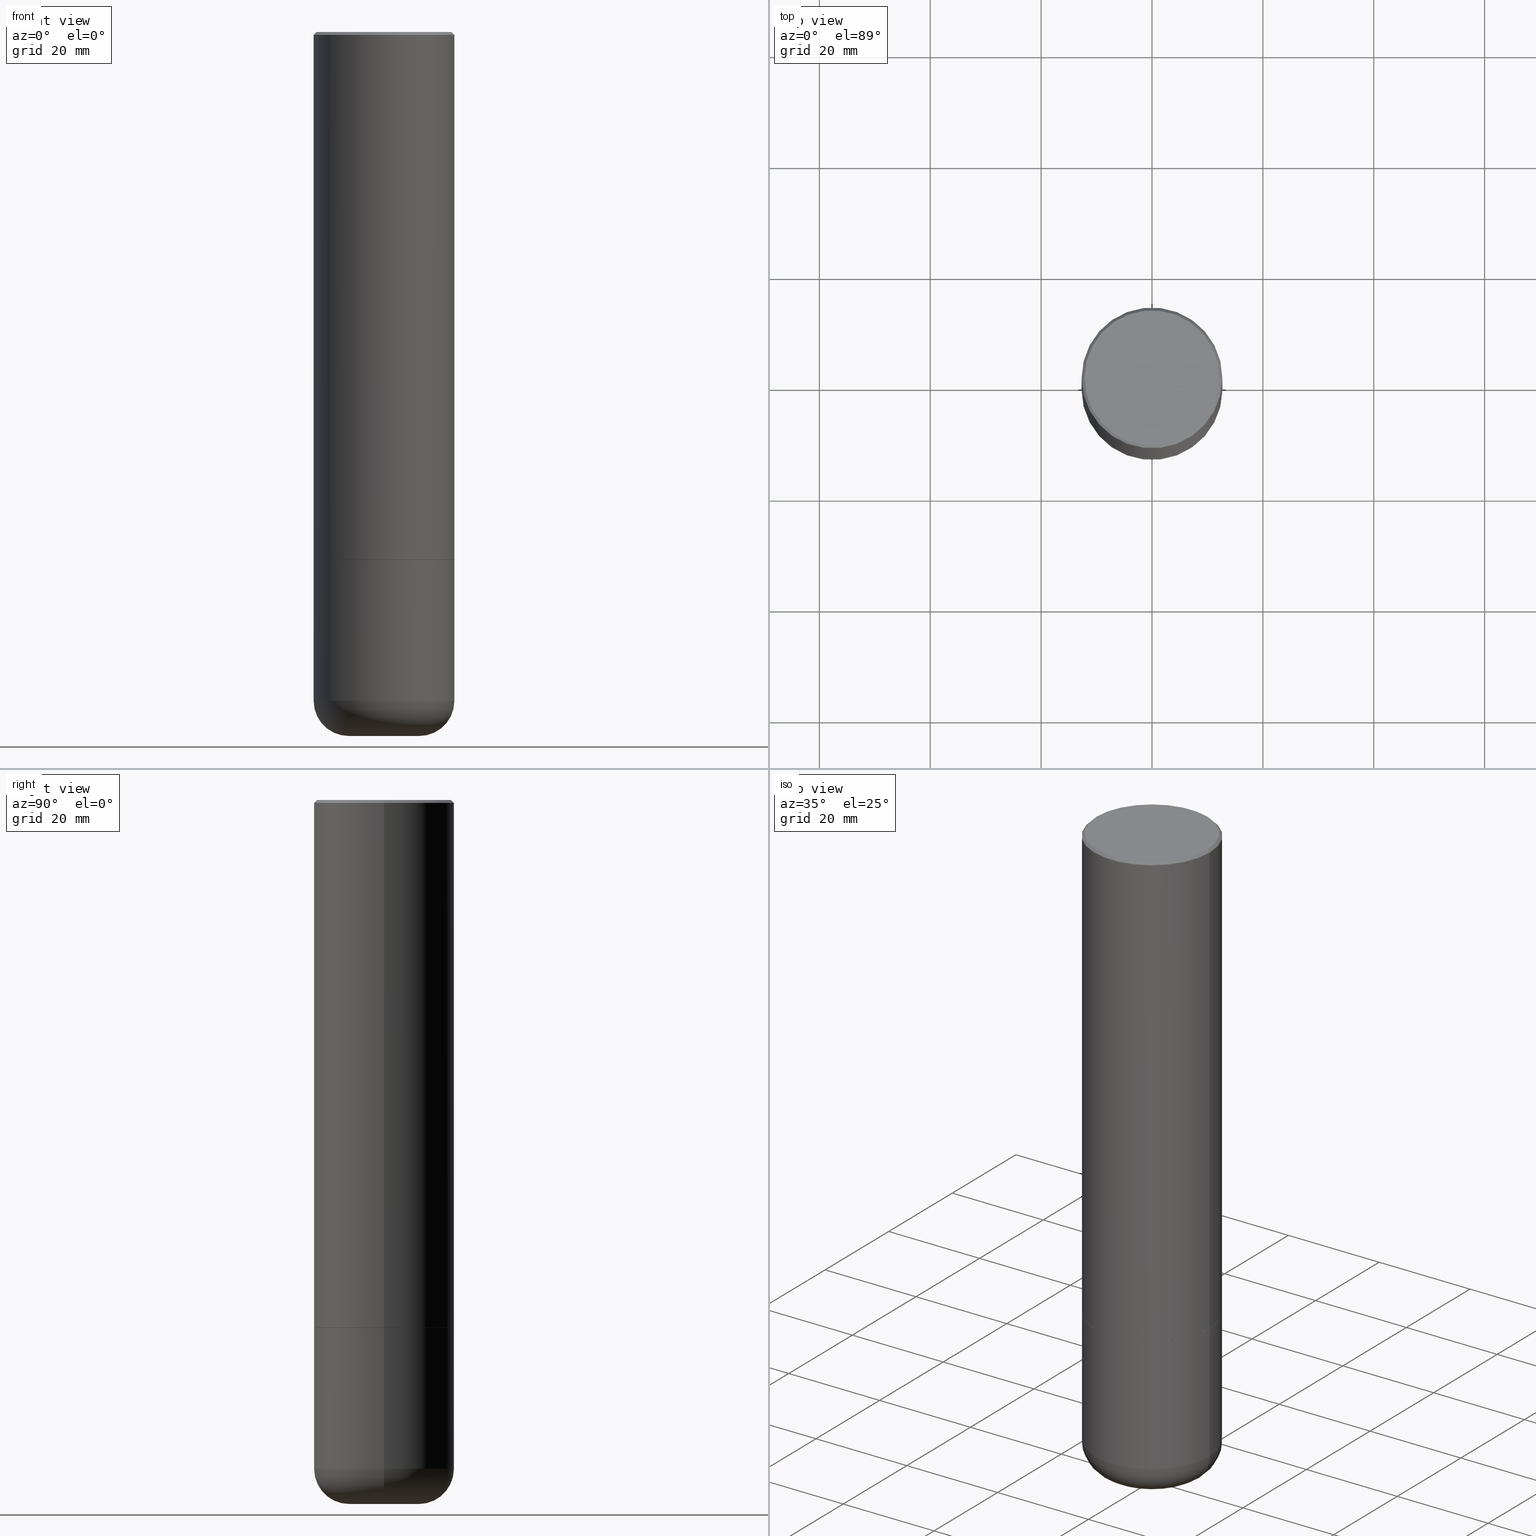
[diagram: canonical four-view strip — front | top / right | iso, engineering-drawing reading convention]
A machine part, canonical four-view strip (front | top / right | iso — engineering-drawing reading convention). The complete STEP part file that produces these views, byte-faithful:
ISO-10303-21;
HEADER;
FILE_DESCRIPTION (( 'STEP AP203' ),
    '1' );
FILE_NAME ('35646.STEP',
    '2022-11-02T20:34:37',
    ( '' ),
    ( '' ),
    'SwSTEP 2.0',
    'SolidWorks 2022',
    '' );
FILE_SCHEMA (( 'CONFIG_CONTROL_DESIGN' ));
ENDSEC;

DATA;
#1 = DIRECTION ( 'NONE',  ( -2.445468806185136597E-29, 3.491481338843145583E-15, 1.000000000000000000 ) ) ;
#2 = EDGE_LOOP ( 'NONE', ( #321, #64, #292, #332 ) ) ;
#3 = CONICAL_SURFACE ( 'NONE', #58, 0.4999999999999990563, 0.7853981633974465026 ) ;
#4 = AXIS2_PLACEMENT_3D ( 'NONE', #77, #452, #122 ) ;
#5 = VECTOR ( 'NONE', #83, 39.37007874015748854 ) ;
#6 = DIRECTION ( 'NONE',  ( 1.000000000000000000, -6.982962677686264344E-15, 0.000000000000000000 ) ) ;
#7 = CARTESIAN_POINT ( 'NONE',  ( 1.222734403092568523E-28, -1.745740669421572989E-14, -5.000000000000000000 ) ) ;
#8 = CARTESIAN_POINT ( 'NONE',  ( -0.4799999999999989275, 3.386736898677831703E-15, 1.280553747027767124E-17 ) ) ;
#9 = CARTESIAN_POINT ( 'NONE',  ( 9.170508023194263359E-29, -1.309305502066179899E-14, -3.750000000000000888 ) ) ;
#10 = DIRECTION ( 'NONE',  ( 2.445468806185136597E-29, -3.491481338843145583E-15, -1.000000000000000000 ) ) ;
#11 = EDGE_CURVE ( 'NONE', #255, #247, #21, .T. ) ;
#12 = DIRECTION ( 'NONE',  ( 1.000000000000000000, -6.982962677686266711E-15, 0.000000000000000000 ) ) ;
#13 = AXIS2_PLACEMENT_3D ( 'NONE', #240, #308, #492 ) ;
#14 = ORIENTED_EDGE ( 'NONE', *, *, #65, .T. ) ;
#15 = ORIENTED_EDGE ( 'NONE', *, *, #465, .F. ) ;
#16 = APPROVAL ( #81, 'UNSPECIFIED' ) ;
#17 = DIRECTION ( 'NONE',  ( -6.982962677686266711E-15, -1.000000000000000000, 3.491481338843145583E-15 ) ) ;
#18 = EDGE_CURVE ( 'NONE', #361, #439, #96, .T. ) ;
#19 = ORIENTED_EDGE ( 'NONE', *, *, #62, .F. ) ;
#20 = VECTOR ( 'NONE', #231, 39.37007874015748143 ) ;
#21 = CIRCLE ( 'NONE', #327, 0.4999999999999994449 ) ;
#22 = AXIS2_PLACEMENT_3D ( 'NONE', #228, #447, #261 ) ;
#23 = EDGE_CURVE ( 'NONE', #437, #449, #394, .T. ) ;
#24 = ORIENTED_EDGE ( 'NONE', *, *, #23, .F. ) ;
#25 = DIRECTION ( 'NONE',  ( 2.445468806185136597E-29, -3.491481338843145583E-15, -1.000000000000000000 ) ) ;
#26 = ORIENTED_EDGE ( 'NONE', *, *, #177, .T. ) ;
#27 = COORDINATED_UNIVERSAL_TIME_OFFSET ( 5, 0, .BEHIND. ) ;
#28 = CARTESIAN_POINT ( 'NONE',  ( -0.4999999999999990563, 3.421651712066263352E-15, -0.02000000000000018777 ) ) ;
#29 = AXIS2_PLACEMENT_3D ( 'NONE', #174, #17, #432 ) ;
#30 = AXIS2_PLACEMENT_3D ( 'NONE', #307, #204, #388 ) ;
#31 = ORIENTED_EDGE ( 'NONE', *, *, #86, .F. ) ;
#32 = PERSON_AND_ORGANIZATION_ROLE ( 'creator' ) ;
#33 = CARTESIAN_POINT ( 'NONE',  ( 1.222620590030553347E-28, -1.745578174532602389E-14, -4.999534596140719600 ) ) ;
#34 = ORIENTED_EDGE ( 'NONE', *, *, #145, .T. ) ;
#35 = DIRECTION ( 'NONE',  ( -2.445468806185136597E-29, 3.491481338843145583E-15, 1.000000000000000000 ) ) ;
#36 = DIRECTION ( 'NONE',  ( 1.000000000000000000, -6.982962677686267499E-15, 4.876176775795935793E-29 ) ) ;
#37 = CARTESIAN_POINT ( 'NONE',  ( -0.4999999999999999445, -1.128609862939673003E-14, -4.750009519233957533 ) ) ;
#38 = ORIENTED_EDGE ( 'NONE', *, *, #23, .T. ) ;
#39 = DIRECTION ( 'NONE',  ( -2.445468806185136597E-29, 3.491481338843145583E-15, 1.000000000000000000 ) ) ;
#40 = CARTESIAN_POINT ( 'NONE',  ( 0.5000000000000000000, -2.007605093457579787E-14, -4.750009519233957533 ) ) ;
#41 = CC_DESIGN_PERSON_AND_ORGANIZATION_ASSIGNMENT ( #190, #457, ( #54 ) ) ;
#42 = CARTESIAN_POINT ( 'NONE',  ( 1.161600010836909978E-28, -1.658456959573266451E-14, -4.750009519233957533 ) ) ;
#43 = AXIS2_PLACEMENT_3D ( 'NONE', #469, #428, #288 ) ;
#44 = DATE_AND_TIME ( #71, #359 ) ;
#45 = DIRECTION ( 'NONE',  ( -0.9999619230641714207, 6.952228252019186602E-15, -0.008726535498369011531 ) ) ;
#46 = DIRECTION ( 'NONE',  ( -1.000000000000000000, 6.982962677686266711E-15, 0.000000000000000000 ) ) ;
#47 = ADVANCED_FACE ( 'NONE', ( #179 ), #209, .F. ) ;
#48 = DIRECTION ( 'NONE',  ( -0.7071067811864267805, 7.493145998869918709E-15, 0.7071067811866682540 ) ) ;
#49 = CARTESIAN_POINT ( 'NONE',  ( 3.351822085289400054E-15, 0.4799999999999989275, -1.669508273909555500E-15 ) ) ;
#50 = LINE ( 'NONE', #116, #20 ) ;
#51 = CLOSED_SHELL ( 'NONE', ( #489, #471, #397, #291, #163, #186, #47, #393 ) ) ;
#52 = CIRCLE ( 'NONE', #178, 0.4999999999999990563 ) ;
#53 = CARTESIAN_POINT ( 'NONE',  ( 0.1944883661254080409, -1.879006879171924334E-14, -4.999534596140719600 ) ) ;
#54 = SECURITY_CLASSIFICATION ( '', '', #341 ) ;
#55 = EDGE_CURVE ( 'NONE', #449, #361, #325, .T. ) ;
#56 = DIRECTION ( 'NONE',  ( 0.9999619230641714207, -6.890705306874825328E-15, -0.008726535498369011531 ) ) ;
#57 = VERTEX_POINT ( 'NONE', #466 ) ;
#58 = AXIS2_PLACEMENT_3D ( 'NONE', #270, #421, #46 ) ;
#59 = AXIS2_PLACEMENT_3D ( 'NONE', #7, #353, #165 ) ;
#60 = FACE_OUTER_BOUND ( 'NONE', #149, .T. ) ;
#61 = PRODUCT ( '35646', '35646', '', ( #318 ) ) ;
#62 = EDGE_CURVE ( 'NONE', #245, #289, #117, .T. ) ;
#63 = CONICAL_SURFACE ( 'NONE', #199, 0.2478183661254080850, 1.562069680534929894 ) ;
#64 = ORIENTED_EDGE ( 'NONE', *, *, #259, .T. ) ;
#65 = EDGE_CURVE ( 'NONE', #491, #279, #52, .T. ) ;
#66 = APPROVAL_ROLE ( '' ) ;
#67 = ORIENTED_EDGE ( 'NONE', *, *, #450, .F. ) ;
#68 = APPLICATION_CONTEXT ( 'configuration controlled 3d designs of mechanical parts and assemblies' ) ;
#69 = DIRECTION ( 'NONE',  ( 1.000000000000000000, -6.982962677686268288E-15, 0.000000000000000000 ) ) ;
#70 = ORIENTED_EDGE ( 'NONE', *, *, #480, .T. ) ;
#71 = CALENDAR_DATE ( 2022, 2, 11 ) ;
#72 = LENGTH_MEASURE_WITH_UNIT ( LENGTH_MEASURE( 0.02539999999999999897 ), #112 );
#73 = CARTESIAN_POINT ( 'NONE',  ( 0.4999999999999997224, -3.491481338843131383E-15, 2.438088387897966495E-29 ) ) ;
#74 = EDGE_LOOP ( 'NONE', ( #34, #196, #281, #251 ) ) ;
#75 = AXIS2_PLACEMENT_3D ( 'NONE', #49, #448, #236 ) ;
#76 = APPROVAL_DATE_TIME ( #104, #148 ) ;
#77 = CARTESIAN_POINT ( 'NONE',  ( 1.161600010836909978E-28, -1.658456959573266451E-14, -4.750009519233957533 ) ) ;
#78 = DIRECTION ( 'NONE',  ( 0.7071067811864267805, -2.468850131080992517E-15, 0.7071067811866682540 ) ) ;
#79 = FACE_OUTER_BOUND ( 'NONE', #139, .T. ) ;
#80 = ORIENTED_EDGE ( 'NONE', *, *, #86, .T. ) ;
#81 = APPROVAL_STATUS ( 'not_yet_approved' ) ;
#82 = CYLINDRICAL_SURFACE ( 'NONE', #358, 0.4999999999999997224 ) ;
#83 = DIRECTION ( 'NONE',  ( -0.9993908270190957621, 6.856857904024565937E-15, -0.03489949670249840874 ) ) ;
#84 = DIRECTION ( 'NONE',  ( -2.445468806185136597E-29, 3.491481338843145583E-15, 1.000000000000000000 ) ) ;
#85 = DIRECTION ( 'NONE',  ( 1.000000000000000000, -6.982962677686268288E-15, 0.000000000000000000 ) ) ;
#86 = EDGE_CURVE ( 'NONE', #225, #57, #151, .T. ) ;
#87 = DIRECTION ( 'NONE',  ( 1.000000000000000000, -6.982962677686266711E-15, 0.000000000000000000 ) ) ;
#88 = AXIS2_PLACEMENT_3D ( 'NONE', #238, #387, #355 ) ;
#89 = AXIS2_PLACEMENT_3D ( 'NONE', #306, #198, #444 ) ;
#90 = CALENDAR_DATE ( 2022, 2, 11 ) ;
#91 = FACE_OUTER_BOUND ( 'NONE', #337, .T. ) ;
#92 = CARTESIAN_POINT ( 'NONE',  ( 0.000000000000000000, 0.000000000000000000, 0.000000000000000000 ) ) ;
#93 = DIRECTION ( 'NONE',  ( -2.445468806185136597E-29, 3.491481338843145583E-15, 1.000000000000000000 ) ) ;
#94 = EDGE_CURVE ( 'NONE', #486, #449, #140, .T. ) ;
#95 = ORIENTED_EDGE ( 'NONE', *, *, #62, .T. ) ;
#96 = CIRCLE ( 'NONE', #29, 0.2499999999999998612 ) ;
#97 = CIRCLE ( 'NONE', #214, 0.4989999999999994440 ) ;
#98 = ORIENTED_EDGE ( 'NONE', *, *, #180, .T. ) ;
#99 = DIRECTION ( 'NONE',  ( 1.000000000000000000, -6.982962677686266711E-15, 0.000000000000000000 ) ) ;
#100 = DIRECTION ( 'NONE',  ( 7.105427357601001859E-15, 1.000000000000000000, -3.491481338843145583E-15 ) ) ;
#101 = EDGE_CURVE ( 'NONE', #189, #225, #356, .T. ) ;
#102 = AXIS2_PLACEMENT_3D ( 'NONE', #319, #322, #392 ) ;
#103 = AXIS2_PLACEMENT_3D ( 'NONE', #344, #383, #349 ) ;
#104 = DATE_AND_TIME ( #220, #208 ) ;
#105 = CC_DESIGN_PERSON_AND_ORGANIZATION_ASSIGNMENT ( #271, #201, ( #227 ) ) ;
#106 = UNCERTAINTY_MEASURE_WITH_UNIT (LENGTH_MEASURE( 1.000000000000000082E-05 ), #372, 'distance_accuracy_value', 'NONE');
#107 = EDGE_LOOP ( 'NONE', ( #258, #80, #219, #405 ) ) ;
#108 = CONICAL_SURFACE ( 'NONE', #329, 0.4989999999999994440, 0.7853981633972775267 ) ;
#109 = APPROVAL_PERSON_ORGANIZATION ( #375, #16, #167 ) ;
#110 = ORIENTED_EDGE ( 'NONE', *, *, #213, .F. ) ;
#111 = ORIENTED_EDGE ( 'NONE', *, *, #180, .F. ) ;
#112 =( LENGTH_UNIT ( ) NAMED_UNIT ( * ) SI_UNIT ( $, .METRE. ) );
#113 = DIRECTION ( 'NONE',  ( -2.445468806185136877E-29, 3.491481338843145188E-15, 1.000000000000000000 ) ) ;
#114 = PERSON_AND_ORGANIZATION ( #406, #276 ) ;
#115 = ORIENTED_EDGE ( 'NONE', *, *, #213, .T. ) ;
#116 = CARTESIAN_POINT ( 'NONE',  ( -0.4999999999999997224, 3.552713678800498957E-15, -2.459467545127451490E-29 ) ) ;
#117 = CIRCLE ( 'NONE', #365, 0.2499999999999998612 ) ;
#118 = DIRECTION ( 'NONE',  ( -1.000000000000000000, 6.982962677686266711E-15, 0.000000000000000000 ) ) ;
#119 = EDGE_LOOP ( 'NONE', ( #15, #173, #430, #477 ) ) ;
#120 = LOCAL_TIME ( 16, 34, 37.00000000000000000, #422 ) ;
#121 = DATE_AND_TIME ( #256, #451 ) ;
#122 = DIRECTION ( 'NONE',  ( 1.000000000000000000, -6.982962677686265133E-15, 4.883557194083112340E-29 ) ) ;
#123 = LINE ( 'NONE', #490, #244 ) ;
#124 = APPROVAL_DATE_TIME ( #121, #16 ) ;
#125 = ADVANCED_FACE ( 'NONE', ( #193 ), #82, .T. ) ;
#126 = DIRECTION ( 'NONE',  ( 1.000000000000000000, -6.982962677686267499E-15, 4.876176775795935793E-29 ) ) ;
#127 = DIRECTION ( 'NONE',  ( 1.000000000000000000, -6.982962677686266711E-15, 0.000000000000000000 ) ) ;
#128 = CARTESIAN_POINT ( 'NONE',  ( -0.4999999999999992228, 3.552713678800495407E-15, -2.459467545127449248E-29 ) ) ;
#129 = APPROVAL_STATUS ( 'not_yet_approved' ) ;
#130 = DIRECTION ( 'NONE',  ( 1.000000000000000000, -6.982962677686268288E-15, 0.000000000000000000 ) ) ;
#131 = EDGE_CURVE ( 'NONE', #189, #185, #423, .T. ) ;
#132 = DIRECTION ( 'NONE',  ( -2.445468806185136597E-29, 3.491481338843145583E-15, 1.000000000000000000 ) ) ;
#133 = DIRECTION ( 'NONE',  ( 2.445468806185136597E-29, -3.491481338843145583E-15, -1.000000000000000000 ) ) ;
#134 = CIRCLE ( 'NONE', #436, 0.5000000000000000000 ) ;
#135 = DIRECTION ( 'NONE',  ( 0.000000000000000000, 0.000000000000000000, 1.000000000000000000 ) ) ;
#136 = CONICAL_SURFACE ( 'NONE', #396, 0.4989999999999994440, 0.7853981633972775267 ) ;
#137 = CARTESIAN_POINT ( 'NONE',  ( 1.161600010836909978E-28, -1.658456959573266451E-14, -4.750009519233957533 ) ) ;
#138 = ORIENTED_EDGE ( 'NONE', *, *, #101, .F. ) ;
#139 = EDGE_LOOP ( 'NONE', ( #299, #295, #142, #328 ) ) ;
#140 = CIRCLE ( 'NONE', #334, 0.1944883661254080409 ) ;
#141 = AXIS2_PLACEMENT_3D ( 'NONE', #455, #420, #127 ) ;
#142 = ORIENTED_EDGE ( 'NONE', *, *, #253, .T. ) ;
#143 = ORIENTED_EDGE ( 'NONE', *, *, #94, .F. ) ;
#144 =( NAMED_UNIT ( * ) PLANE_ANGLE_UNIT ( ) SI_UNIT ( $, .RADIAN. ) );
#145 = EDGE_CURVE ( 'NONE', #185, #189, #97, .T. ) ;
#146 = AXIS2_PLACEMENT_3D ( 'NONE', #224, #373, #161 ) ;
#147 = CONICAL_SURFACE ( 'NONE', #215, 0.1944883661254080409, 1.535889741755012583 ) ;
#148 = APPROVAL ( #478, 'UNSPECIFIED' ) ;
#149 = EDGE_LOOP ( 'NONE', ( #24, #374, #482 ) ) ;
#150 = ORIENTED_EDGE ( 'NONE', *, *, #474, .T. ) ;
#151 = CIRCLE ( 'NONE', #22, 0.4999999999999994449 ) ;
#152 = EDGE_LOOP ( 'NONE', ( #19, #150, #184, #340 ) ) ;
#153 = DATE_AND_TIME ( #90, #120 ) ;
#154 = CARTESIAN_POINT ( 'NONE',  ( 0.1944883661254080409, -1.879006879171924334E-14, -4.999534596140719600 ) ) ;
#155 = CARTESIAN_POINT ( 'NONE',  ( -0.4999999999999994449, -1.128609862939673161E-14, -3.750000000000000000 ) ) ;
#156 = ORIENTED_EDGE ( 'NONE', *, *, #363, .F. ) ;
#157 = DIRECTION ( 'NONE',  ( -2.445468806185136597E-29, 3.491481338843145583E-15, 1.000000000000000000 ) ) ;
#158 = FACE_OUTER_BOUND ( 'NONE', #264, .T. ) ;
#159 = EDGE_LOOP ( 'NONE', ( #98, #26, #399, #435 ) ) ;
#160 = CARTESIAN_POINT ( 'NONE',  ( 9.170508023194263359E-29, -1.309305502066179899E-14, -3.750000000000000888 ) ) ;
#161 = DIRECTION ( 'NONE',  ( 1.000000000000000000, -6.982962677686273021E-15, 0.000000000000000000 ) ) ;
#162 = CIRCLE ( 'NONE', #43, 0.4999999999999994449 ) ;
#163 = ADVANCED_FACE ( 'NONE', ( #164 ), #419, .T. ) ;
#164 = FACE_OUTER_BOUND ( 'NONE', #107, .T. ) ;
#165 = DIRECTION ( 'NONE',  ( 1.000000000000000000, -6.982962677686273021E-15, 0.000000000000000000 ) ) ;
#166 = DIRECTION ( 'NONE',  ( -2.445468806185136597E-29, 3.491481338843145583E-15, 1.000000000000000000 ) ) ;
#167 = APPROVAL_ROLE ( '' ) ;
#168 = CARTESIAN_POINT ( 'NONE',  ( -0.4999999999999990563, 3.421651712066263352E-15, -0.02000000000000018777 ) ) ;
#169 = FACE_OUTER_BOUND ( 'NONE', #74, .T. ) ;
#170 = FACE_OUTER_BOUND ( 'NONE', #119, .T. ) ;
#171 = DIRECTION ( 'NONE',  ( -2.445468806185136597E-29, 3.491481338843145583E-15, 1.000000000000000000 ) ) ;
#172 = CIRCLE ( 'NONE', #13, 0.4999999999999990563 ) ;
#173 = ORIENTED_EDGE ( 'NONE', *, *, #363, .T. ) ;
#174 = CARTESIAN_POINT ( 'NONE',  ( 0.2500000000000002776, -1.833031026515423119E-14, -4.750009519233957533 ) ) ;
#175 = PRODUCT_RELATED_PRODUCT_CATEGORY ( 'detail', '', ( #61 ) ) ;
#176 = DIRECTION ( 'NONE',  ( 0.9993908270190957621, -6.978169709227532810E-15, -0.03489949670249840874 ) ) ;
#177 = EDGE_CURVE ( 'NONE', #289, #255, #50, .T. ) ;
#178 = AXIS2_PLACEMENT_3D ( 'NONE', #472, #287, #12 ) ;
#179 = FACE_OUTER_BOUND ( 'NONE', #479, .T. ) ;
#180 = EDGE_CURVE ( 'NONE', #439, #289, #134, .T. ) ;
#181 = ORIENTED_EDGE ( 'NONE', *, *, #273, .T. ) ;
#182 = PRODUCT_DEFINITION_SHAPE ( 'NONE', 'NONE',  #227 ) ;
#183 = CIRCLE ( 'NONE', #146, 0.2478183661254080850 ) ;
#184 = ORIENTED_EDGE ( 'NONE', *, *, #18, .T. ) ;
#185 = VERTEX_POINT ( 'NONE', #265 ) ;
#186 = ADVANCED_FACE ( 'NONE', ( #268 ), #108, .T. ) ;
#187 = MANIFOLD_SOLID_BREP ( 'Body-Move/Copy2[1]', #459 ) ;
#188 = DATE_TIME_ROLE ( 'creation_date' ) ;
#189 = VERTEX_POINT ( 'NONE', #197 ) ;
#190 = PERSON_AND_ORGANIZATION ( #406, #276 ) ;
#191 = DIRECTION ( 'NONE',  ( -1.000000000000000000, 6.982962677686265922E-15, -4.876176775795935793E-29 ) ) ;
#192 = VERTEX_POINT ( 'NONE', #380 ) ;
#193 = FACE_OUTER_BOUND ( 'NONE', #159, .T. ) ;
#194 = ADVANCED_FACE ( 'NONE', ( #234 ), #398, .T. ) ;
#195 = FACE_OUTER_BOUND ( 'NONE', #446, .T. ) ;
#196 = ORIENTED_EDGE ( 'NONE', *, *, #101, .T. ) ;
#197 = CARTESIAN_POINT ( 'NONE',  ( -0.4989999999999994440, -9.542148314870680613E-15, -3.750000000000000888 ) ) ;
#198 = DIRECTION ( 'NONE',  ( -2.445468806185136597E-29, 3.491481338843145583E-15, 1.000000000000000000 ) ) ;
#199 = AXIS2_PLACEMENT_3D ( 'NONE', #266, #10, #338 ) ;
#200 = PLANE ( 'NONE',  #262 ) ;
#201 = PERSON_AND_ORGANIZATION_ROLE ( 'creator' ) ;
#202 = LINE ( 'NONE', #168, #395 ) ;
#203 = CARTESIAN_POINT ( 'NONE',  ( -0.1944883661254080409, -1.609767674342811881E-14, -4.999534596140719600 ) ) ;
#204 = DIRECTION ( 'NONE',  ( -2.445468806185136597E-29, 3.491481338843145583E-15, 1.000000000000000000 ) ) ;
#205 = DIRECTION ( 'NONE',  ( -0.7071067811865462405, 2.468850131082243256E-15, -0.7071067811865487940 ) ) ;
#206 = EDGE_CURVE ( 'NONE', #57, #279, #458, .T. ) ;
#207 = DIRECTION ( 'NONE',  ( -2.445468806185136877E-29, 3.491481338843145188E-15, 1.000000000000000000 ) ) ;
#208 = LOCAL_TIME ( 16, 34, 37.00000000000000000, #339 ) ;
#209 = PLANE ( 'NONE',  #102 ) ;
#210 = CARTESIAN_POINT ( 'NONE',  ( -0.2500000000000002776, -1.480821275633241089E-14, -4.750009519233957533 ) ) ;
#211 = EDGE_CURVE ( 'NONE', #279, #491, #172, .T. ) ;
#212 = ORIENTED_EDGE ( 'NONE', *, *, #18, .F. ) ;
#213 = EDGE_CURVE ( 'NONE', #486, #245, #384, .T. ) ;
#214 = AXIS2_PLACEMENT_3D ( 'NONE', #9, #39, #130 ) ;
#215 = AXIS2_PLACEMENT_3D ( 'NONE', #434, #25, #381 ) ;
#216 = APPLICATION_PROTOCOL_DEFINITION ( 'international standard', 'config_control_design', 1994, #68 ) ;
#217 = ORIENTED_EDGE ( 'NONE', *, *, #131, .T. ) ;
#218 = EDGE_CURVE ( 'NONE', #303, #491, #202, .T. ) ;
#219 = ORIENTED_EDGE ( 'NONE', *, *, #206, .T. ) ;
#220 = CALENDAR_DATE ( 2022, 2, 11 ) ;
#221 = LINE ( 'NONE', #297, #462 ) ;
#222 = ORIENTED_EDGE ( 'NONE', *, *, #94, .T. ) ;
#223 = APPROVAL_PERSON_ORGANIZATION ( #418, #343, #443 ) ;
#224 = CARTESIAN_POINT ( 'NONE',  ( 1.222734403092568523E-28, -1.745740669421572989E-14, -5.000000000000000000 ) ) ;
#225 = VERTEX_POINT ( 'NONE', #272 ) ;
#226 = COORDINATED_UNIVERSAL_TIME_OFFSET ( 5, 0, .BEHIND. ) ;
#227 = PRODUCT_DEFINITION ( 'UNKNOWN', '', #468, #473 ) ;
#228 = CARTESIAN_POINT ( 'NONE',  ( 9.168062554388078877E-29, -1.308956353932295441E-14, -3.749000000000000554 ) ) ;
#229 = DIRECTION ( 'NONE',  ( -2.445468806185136877E-29, 3.491481338843145188E-15, 1.000000000000000000 ) ) ;
#230 = EDGE_LOOP ( 'NONE', ( #138, #217, #401, #31 ) ) ;
#231 = DIRECTION ( 'NONE',  ( -2.445468806185136877E-29, 3.491481338843145188E-15, 1.000000000000000000 ) ) ;
#232 = CARTESIAN_POINT ( 'NONE',  ( 0.2478183661254080850, -1.918791309571464730E-14, -5.000000000000000000 ) ) ;
#233 = ADVANCED_BREP_SHAPE_REPRESENTATION ( '35646', ( #187, #351, #400 ), #483 ) ;
#234 = FACE_OUTER_BOUND ( 'NONE', #152, .T. ) ;
#235 = LINE ( 'NONE', #377, #5 ) ;
#236 = DIRECTION ( 'NONE',  ( -1.000000000000000000, 6.982962677686265922E-15, -4.876176775795935793E-29 ) ) ;
#237 = AXIS2_PLACEMENT_3D ( 'NONE', #42, #166, #87 ) ;
#238 = CARTESIAN_POINT ( 'NONE',  ( 1.222734403092568523E-28, -1.745740669421572989E-14, -5.000000000000000000 ) ) ;
#239 = DIRECTION ( 'NONE',  ( 1.000000000000000000, -6.982962677686264344E-15, 0.000000000000000000 ) ) ;
#240 = CARTESIAN_POINT ( 'NONE',  ( 4.890937612370318701E-31, -6.982962677686356937E-17, -0.02000000000000018777 ) ) ;
#241 = ORIENTED_EDGE ( 'NONE', *, *, #474, .F. ) ;
#242 = TOROIDAL_SURFACE ( 'NONE', #103, 0.2500000000000002776, 0.2499999999999998612 ) ;
#243 = CARTESIAN_POINT ( 'NONE',  ( 0.000000000000000000, 0.000000000000000000, 0.000000000000000000 ) ) ;
#244 = VECTOR ( 'NONE', #485, 39.37007874015748143 ) ;
#245 = VERTEX_POINT ( 'NONE', #424 ) ;
#246 = ADVANCED_FACE ( 'NONE', ( #91 ), #475, .F. ) ;
#247 = VERTEX_POINT ( 'NONE', #389 ) ;
#248 = ORIENTED_EDGE ( 'NONE', *, *, #218, .T. ) ;
#249 = CC_DESIGN_SECURITY_CLASSIFICATION ( #54, ( #468 ) ) ;
#250 = DIMENSIONAL_EXPONENTS ( 1.000000000000000000, 0.000000000000000000, 0.000000000000000000, 0.000000000000000000, 0.000000000000000000, 0.000000000000000000, 0.000000000000000000 ) ;
#251 = ORIENTED_EDGE ( 'NONE', *, *, #440, .F. ) ;
#252 = AXIS2_PLACEMENT_3D ( 'NONE', #92, #1, #354 ) ;
#253 = EDGE_CURVE ( 'NONE', #439, #247, #275, .T. ) ;
#254 = EDGE_LOOP ( 'NONE', ( #362, #369, #115, #412 ) ) ;
#255 = VERTEX_POINT ( 'NONE', #155 ) ;
#256 = CALENDAR_DATE ( 2022, 2, 11 ) ;
#257 = CARTESIAN_POINT ( 'NONE',  ( 1.222620590030553347E-28, -1.745578174532602389E-14, -4.999534596140719600 ) ) ;
#258 = ORIENTED_EDGE ( 'NONE', *, *, #259, .F. ) ;
#259 = EDGE_CURVE ( 'NONE', #225, #491, #453, .T. ) ;
#260 = PERSON_AND_ORGANIZATION_ROLE ( 'design_supplier' ) ;
#261 = DIRECTION ( 'NONE',  ( 1.000000000000000000, -6.982962677686266711E-15, 0.000000000000000000 ) ) ;
#262 = AXIS2_PLACEMENT_3D ( 'NONE', #378, #456, #191 ) ;
#263 = CIRCLE ( 'NONE', #89, 0.4799999999999989275 ) ;
#264 = EDGE_LOOP ( 'NONE', ( #70, #403 ) ) ;
#265 = CARTESIAN_POINT ( 'NONE',  ( 0.4989999999999994440, -1.657755339682724475E-14, -3.750000000000000888 ) ) ;
#266 = CARTESIAN_POINT ( 'NONE',  ( 1.222734403092568523E-28, -1.745740669421572989E-14, -5.000000000000000000 ) ) ;
#267 = COORDINATED_UNIVERSAL_TIME_OFFSET ( 5, 0, .BEHIND. ) ;
#268 = FACE_OUTER_BOUND ( 'NONE', #230, .T. ) ;
#269 = DIRECTION ( 'NONE',  ( -2.445468806185136597E-29, 3.491481338843145583E-15, 1.000000000000000000 ) ) ;
#270 = CARTESIAN_POINT ( 'NONE',  ( 4.890937612370318701E-31, -6.982962677686356937E-17, -0.02000000000000018777 ) ) ;
#271 = PERSON_AND_ORGANIZATION ( #406, #276 ) ;
#272 = CARTESIAN_POINT ( 'NONE',  ( -0.4999999999999994449, -3.026982904249409106E-15, -3.749000000000000554 ) ) ;
#273 = EDGE_CURVE ( 'NONE', #361, #245, #183, .T. ) ;
#274 = CONICAL_SURFACE ( 'NONE', #407, 0.1944883661254080409, 1.535889741755012583 ) ;
#275 = LINE ( 'NONE', #73, #481 ) ;
#276 = ORGANIZATION ( 'UNSPECIFIED', 'UNSPECIFIED', '' ) ;
#277 = APPLICATION_PROTOCOL_DEFINITION ( 'international standard', 'config_control_design', 1994, #415 ) ;
#278 = DIRECTION ( 'NONE',  ( 1.000000000000000000, -6.982962677686266711E-15, 0.000000000000000000 ) ) ;
#279 = VERTEX_POINT ( 'NONE', #411 ) ;
#280 = ADVANCED_FACE ( 'NONE', ( #309 ), #274, .F. ) ;
#281 = ORIENTED_EDGE ( 'NONE', *, *, #402, .F. ) ;
#282 = CIRCLE ( 'NONE', #467, 0.1944883661254080409 ) ;
#283 = VECTOR ( 'NONE', #229, 39.37007874015748143 ) ;
#284 = DIRECTION ( 'NONE',  ( 1.000000000000000000, 0.000000000000000000, 0.000000000000000000 ) ) ;
#285 = CC_DESIGN_APPROVAL ( #16, ( #468 ) ) ;
#286 = ADVANCED_FACE ( 'NONE', ( #158 ), #200, .F. ) ;
#287 = DIRECTION ( 'NONE',  ( -2.445468806185136597E-29, 3.491481338843145583E-15, 1.000000000000000000 ) ) ;
#288 = DIRECTION ( 'NONE',  ( 1.000000000000000000, -6.982962677686266711E-15, 0.000000000000000000 ) ) ;
#289 = VERTEX_POINT ( 'NONE', #37 ) ;
#290 = EDGE_LOOP ( 'NONE', ( #156, #379, #248, #14 ) ) ;
#291 = ADVANCED_FACE ( 'NONE', ( #386 ), #3, .T. ) ;
#292 = ORIENTED_EDGE ( 'NONE', *, *, #211, .F. ) ;
#293 = VECTOR ( 'NONE', #48, 39.37007874015748143 ) ;
#294 = APPROVAL_PERSON_ORGANIZATION ( #114, #148, #66 ) ;
#295 = ORIENTED_EDGE ( 'NONE', *, *, #382, .T. ) ;
#296 = APPROVAL_DATE_TIME ( #153, #343 ) ;
#297 = CARTESIAN_POINT ( 'NONE',  ( 0.4989999999999994440, -1.657755339682724475E-14, -3.750000000000000888 ) ) ;
#298 = CYLINDRICAL_SURFACE ( 'NONE', #252, 0.4999999999999997224 ) ;
#299 = ORIENTED_EDGE ( 'NONE', *, *, #177, .F. ) ;
#300 = CARTESIAN_POINT ( 'NONE',  ( 1.220959705040374612E-28, -1.743206870946759098E-14, -4.992742912738427741 ) ) ;
#301 = PLANE ( 'NONE',  #75 ) ;
#302 = ADVANCED_FACE ( 'NONE', ( #195 ), #242, .T. ) ;
#303 = VERTEX_POINT ( 'NONE', #8 ) ;
#304 =( NAMED_UNIT ( * ) SI_UNIT ( $, .STERADIAN. ) SOLID_ANGLE_UNIT ( ) );
#305 = DATE_AND_TIME ( #336, #330 ) ;
#306 = CARTESIAN_POINT ( 'NONE',  ( -3.131554243005659264E-46, 4.471029511141341874E-32, 1.280553747030123384E-17 ) ) ;
#307 = CARTESIAN_POINT ( 'NONE',  ( -3.131554243005659264E-46, 4.471029511141341874E-32, 1.280553747030123384E-17 ) ) ;
#308 = DIRECTION ( 'NONE',  ( -2.445468806185136597E-29, 3.491481338843145583E-15, 1.000000000000000000 ) ) ;
#309 = FACE_OUTER_BOUND ( 'NONE', #345, .T. ) ;
#310 = PERSON_AND_ORGANIZATION ( #406, #276 ) ;
#311 = ADVANCED_FACE ( 'NONE', ( #79 ), #298, .T. ) ;
#312 = CARTESIAN_POINT ( 'NONE',  ( -0.2478183661254080850, -1.572690029271681563E-14, -5.000000000000000000 ) ) ;
#313 = CARTESIAN_POINT ( 'NONE',  ( 9.170508023194263359E-29, -1.309305502066179899E-14, -3.750000000000000888 ) ) ;
#314 = CARTESIAN_POINT ( 'NONE',  ( 4.890937612370318701E-31, -6.982962677686356937E-17, -0.02000000000000018777 ) ) ;
#315 = CARTESIAN_POINT ( 'NONE',  ( -0.4989999999999994440, -9.547446769218903015E-15, -3.750000000000000888 ) ) ;
#316 = VECTOR ( 'NONE', #176, 39.37007874015748854 ) ;
#317 = CIRCLE ( 'NONE', #141, 0.4999999999999994449 ) ;
#318 = MECHANICAL_CONTEXT ( 'NONE', #415, 'mechanical' ) ;
#319 = CARTESIAN_POINT ( 'NONE',  ( 9.170508023194262238E-29, -1.309305502066179741E-14, -3.750000000000000000 ) ) ;
#320 = CC_DESIGN_PERSON_AND_ORGANIZATION_ASSIGNMENT ( #429, #441, ( #61 ) ) ;
#321 = ORIENTED_EDGE ( 'NONE', *, *, #402, .T. ) ;
#322 = DIRECTION ( 'NONE',  ( -2.438088387897960049E-29, 3.491481338843145188E-15, 1.000000000000000000 ) ) ;
#323 = AXIS2_PLACEMENT_3D ( 'NONE', #461, #376, #126 ) ;
#324 = AXIS2_PLACEMENT_3D ( 'NONE', #314, #133, #118 ) ;
#325 = LINE ( 'NONE', #360, #370 ) ;
#326 = EDGE_CURVE ( 'NONE', #303, #192, #460, .T. ) ;
#327 = AXIS2_PLACEMENT_3D ( 'NONE', #390, #464, #99 ) ;
#328 = ORIENTED_EDGE ( 'NONE', *, *, #11, .F. ) ;
#329 = AXIS2_PLACEMENT_3D ( 'NONE', #160, #93, #85 ) ;
#330 = LOCAL_TIME ( 16, 34, 37.00000000000000000, #267 ) ;
#331 = CC_DESIGN_PERSON_AND_ORGANIZATION_ASSIGNMENT ( #310, #260, ( #468 ) ) ;
#332 = ORIENTED_EDGE ( 'NONE', *, *, #206, .F. ) ;
#333 = ORIENTED_EDGE ( 'NONE', *, *, #465, .T. ) ;
#334 = AXIS2_PLACEMENT_3D ( 'NONE', #352, #171, #6 ) ;
#335 = CC_DESIGN_DATE_AND_TIME_ASSIGNMENT ( #305, #484, ( #54 ) ) ;
#336 = CALENDAR_DATE ( 2022, 2, 11 ) ;
#337 = EDGE_LOOP ( 'NONE', ( #222, #367, #241, #110 ) ) ;
#338 = DIRECTION ( 'NONE',  ( -1.000000000000000000, 6.982962677686265133E-15, 0.000000000000000000 ) ) ;
#339 = COORDINATED_UNIVERSAL_TIME_OFFSET ( 5, 0, .BEHIND. ) ;
#340 = ORIENTED_EDGE ( 'NONE', *, *, #382, .F. ) ;
#341 = SECURITY_CLASSIFICATION_LEVEL ( 'unclassified' ) ;
#342 = DIRECTION ( 'NONE',  ( 1.000000000000000000, -6.982962677686268288E-15, 0.000000000000000000 ) ) ;
#343 = APPROVAL ( #129, 'UNSPECIFIED' ) ;
#344 = CARTESIAN_POINT ( 'NONE',  ( 1.161600010836909978E-28, -1.658456959573266451E-14, -4.750009519233957533 ) ) ;
#345 = EDGE_LOOP ( 'NONE', ( #67, #38, #143 ) ) ;
#346 = DIRECTION ( 'NONE',  ( -2.445468806185136597E-29, 3.491481338843145583E-15, 1.000000000000000000 ) ) ;
#347 = AXIS2_PLACEMENT_3D ( 'NONE', #348, #269, #36 ) ;
#348 = CARTESIAN_POINT ( 'NONE',  ( 0.000000000000000000, 0.000000000000000000, 0.000000000000000000 ) ) ;
#349 = DIRECTION ( 'NONE',  ( 1.000000000000000000, -6.982962677686265133E-15, 4.883557194083112340E-29 ) ) ;
#350 = ADVANCED_FACE ( 'NONE', ( #417 ), #63, .F. ) ;
#351 = MANIFOLD_SOLID_BREP ( 'Body-Move/Copy2[2]', #51 ) ;
#352 = CARTESIAN_POINT ( 'NONE',  ( 1.222620590030553347E-28, -1.745578174532602389E-14, -4.999534596140719600 ) ) ;
#353 = DIRECTION ( 'NONE',  ( -2.445468806185136597E-29, 3.491481338843145583E-15, 1.000000000000000000 ) ) ;
#354 = DIRECTION ( 'NONE',  ( 1.000000000000000000, -6.982962677686266711E-15, 4.876176775795935793E-29 ) ) ;
#355 = DIRECTION ( 'NONE',  ( -1.000000000000000000, 6.982962677686265133E-15, 0.000000000000000000 ) ) ;
#356 = LINE ( 'NONE', #315, #293 ) ;
#357 = EDGE_CURVE ( 'NONE', #449, #486, #282, .T. ) ;
#358 = AXIS2_PLACEMENT_3D ( 'NONE', #454, #157, #427 ) ;
#359 = LOCAL_TIME ( 16, 34, 37.00000000000000000, #27 ) ;
#360 = CARTESIAN_POINT ( 'NONE',  ( 0.2478183661254080850, -1.915756409883010398E-14, -5.000000000000000000 ) ) ;
#361 = VERTEX_POINT ( 'NONE', #232 ) ;
#362 = ORIENTED_EDGE ( 'NONE', *, *, #55, .F. ) ;
#363 = EDGE_CURVE ( 'NONE', #192, #279, #123, .T. ) ;
#364 = CC_DESIGN_DATE_AND_TIME_ASSIGNMENT ( #44, #188, ( #227 ) ) ;
#365 = AXIS2_PLACEMENT_3D ( 'NONE', #210, #100, #463 ) ;
#366 = VECTOR ( 'NONE', #207, 39.37007874015748143 ) ;
#367 = ORIENTED_EDGE ( 'NONE', *, *, #55, .T. ) ;
#368 = EDGE_LOOP ( 'NONE', ( #442, #333 ) ) ;
#369 = ORIENTED_EDGE ( 'NONE', *, *, #357, .T. ) ;
#370 = VECTOR ( 'NONE', #56, 39.37007874015748854 ) ;
#371 = CIRCLE ( 'NONE', #59, 0.2478183661254080850 ) ;
#372 =( CONVERSION_BASED_UNIT ( 'INCH', #72 ) LENGTH_UNIT ( ) NAMED_UNIT ( #250 ) );
#373 = DIRECTION ( 'NONE',  ( -2.445468806185136597E-29, 3.491481338843145583E-15, 1.000000000000000000 ) ) ;
#374 = ORIENTED_EDGE ( 'NONE', *, *, #450, .T. ) ;
#375 = PERSON_AND_ORGANIZATION ( #406, #276 ) ;
#376 = DIRECTION ( 'NONE',  ( -2.445468806185136597E-29, 3.491481338843145583E-15, 1.000000000000000000 ) ) ;
#377 = CARTESIAN_POINT ( 'NONE',  ( -0.1944883661254080409, -1.609767674342811881E-14, -4.999534596140719600 ) ) ;
#378 = CARTESIAN_POINT ( 'NONE',  ( 3.491481338843220919E-15, 0.4999999999999863443, -3.750000000000001776 ) ) ;
#379 = ORIENTED_EDGE ( 'NONE', *, *, #326, .F. ) ;
#380 = CARTESIAN_POINT ( 'NONE',  ( 0.4799999999999989275, -3.396558832296475394E-15, 1.280553747032483033E-17 ) ) ;
#381 = DIRECTION ( 'NONE',  ( -1.000000000000000000, 6.982962677686264344E-15, 0.000000000000000000 ) ) ;
#382 = EDGE_CURVE ( 'NONE', #289, #439, #425, .T. ) ;
#383 = DIRECTION ( 'NONE',  ( -2.445468806185136597E-29, 3.491481338843145583E-15, 1.000000000000000000 ) ) ;
#384 = LINE ( 'NONE', #312, #391 ) ;
#385 = CC_DESIGN_APPROVAL ( #343, ( #54 ) ) ;
#386 = FACE_OUTER_BOUND ( 'NONE', #290, .T. ) ;
#387 = DIRECTION ( 'NONE',  ( 2.445468806185136597E-29, -3.491481338843145583E-15, -1.000000000000000000 ) ) ;
#388 = DIRECTION ( 'NONE',  ( 1.000000000000000000, -6.982962677686266711E-15, 4.876036955247140054E-29 ) ) ;
#389 = CARTESIAN_POINT ( 'NONE',  ( 0.4999999999999994449, -1.658453635950492761E-14, -3.750000000000000000 ) ) ;
#390 = CARTESIAN_POINT ( 'NONE',  ( 9.170508023194262238E-29, -1.309305502066179741E-14, -3.750000000000000000 ) ) ;
#391 = VECTOR ( 'NONE', #45, 39.37007874015748854 ) ;
#392 = DIRECTION ( 'NONE',  ( 1.000000000000000000, -6.982962677686265922E-15, 4.876176775795935793E-29 ) ) ;
#393 = ADVANCED_FACE ( 'NONE', ( #404 ), #301, .F. ) ;
#394 = LINE ( 'NONE', #53, #316 ) ;
#395 = VECTOR ( 'NONE', #205, 39.37007874015748143 ) ;
#396 = AXIS2_PLACEMENT_3D ( 'NONE', #313, #132, #69 ) ;
#397 = ADVANCED_FACE ( 'NONE', ( #170 ), #408, .T. ) ;
#398 = TOROIDAL_SURFACE ( 'NONE', #4, 0.2500000000000002776, 0.2499999999999998612 ) ;
#399 = ORIENTED_EDGE ( 'NONE', *, *, #480, .F. ) ;
#400 = AXIS2_PLACEMENT_3D ( 'NONE', #243, #135, #284 ) ;
#401 = ORIENTED_EDGE ( 'NONE', *, *, #440, .T. ) ;
#402 = EDGE_CURVE ( 'NONE', #57, #225, #162, .T. ) ;
#403 = ORIENTED_EDGE ( 'NONE', *, *, #11, .T. ) ;
#404 = FACE_OUTER_BOUND ( 'NONE', #368, .T. ) ;
#405 = ORIENTED_EDGE ( 'NONE', *, *, #65, .F. ) ;
#406 = PERSON ( 'UNSPECIFIED', 'UNSPECIFIED', 'UNSPECIFIED', ('UNSPECIFIED'), ('UNSPECIFIED'), ('UNSPECIFIED') ) ;
#407 = AXIS2_PLACEMENT_3D ( 'NONE', #33, #426, #445 ) ;
#408 = CONICAL_SURFACE ( 'NONE', #324, 0.4999999999999990563, 0.7853981633974465026 ) ;
#409 = PERSON_AND_ORGANIZATION ( #406, #276 ) ;
#410 = CARTESIAN_POINT ( 'NONE',  ( 9.170508023194263359E-29, -1.309305502066179899E-14, -3.750000000000000888 ) ) ;
#411 = CARTESIAN_POINT ( 'NONE',  ( 0.4999999999999990563, -3.500078625662622374E-15, -0.02000000000000018777 ) ) ;
#412 = ORIENTED_EDGE ( 'NONE', *, *, #273, .F. ) ;
#413 = CC_DESIGN_PERSON_AND_ORGANIZATION_ASSIGNMENT ( #409, #32, ( #468 ) ) ;
#414 = CARTESIAN_POINT ( 'NONE',  ( 0.4999999999999992228, -3.491481338843128228E-15, 2.438088387897963973E-29 ) ) ;
#415 = APPLICATION_CONTEXT ( 'configuration controlled 3d designs of mechanical parts and assemblies' ) ;
#416 = CYLINDRICAL_SURFACE ( 'NONE', #347, 0.4999999999999992228 ) ;
#417 = FACE_OUTER_BOUND ( 'NONE', #254, .T. ) ;
#418 = PERSON_AND_ORGANIZATION ( #406, #276 ) ;
#419 = CYLINDRICAL_SURFACE ( 'NONE', #323, 0.4999999999999992228 ) ;
#420 = DIRECTION ( 'NONE',  ( -2.445468806185136597E-29, 3.491481338843145583E-15, 1.000000000000000000 ) ) ;
#421 = DIRECTION ( 'NONE',  ( 2.445468806185136597E-29, -3.491481338843145583E-15, -1.000000000000000000 ) ) ;
#422 = COORDINATED_UNIVERSAL_TIME_OFFSET ( 5, 0, .BEHIND. ) ;
#423 = CIRCLE ( 'NONE', #438, 0.4989999999999994440 ) ;
#424 = CARTESIAN_POINT ( 'NONE',  ( -0.2478183661254081127, -1.436420360638221795E-14, -5.000000000000000000 ) ) ;
#425 = CIRCLE ( 'NONE', #237, 0.5000000000000000000 ) ;
#426 = DIRECTION ( 'NONE',  ( 2.445468806185136597E-29, -3.491481338843145583E-15, -1.000000000000000000 ) ) ;
#427 = DIRECTION ( 'NONE',  ( 1.000000000000000000, -6.982962677686266711E-15, 4.876176775795935793E-29 ) ) ;
#428 = DIRECTION ( 'NONE',  ( -2.445468806185136597E-29, 3.491481338843145583E-15, 1.000000000000000000 ) ) ;
#429 = PERSON_AND_ORGANIZATION ( #406, #276 ) ;
#430 = ORIENTED_EDGE ( 'NONE', *, *, #211, .T. ) ;
#431 = ORIENTED_EDGE ( 'NONE', *, *, #131, .F. ) ;
#432 = DIRECTION ( 'NONE',  ( 1.000000000000000000, -6.982962677686266711E-15, 0.000000000000000000 ) ) ;
#433 = ADVANCED_FACE ( 'NONE', ( #60 ), #147, .F. ) ;
#434 = CARTESIAN_POINT ( 'NONE',  ( 1.222620590030553347E-28, -1.745578174532602389E-14, -4.999534596140719600 ) ) ;
#435 = ORIENTED_EDGE ( 'NONE', *, *, #253, .F. ) ;
#436 = AXIS2_PLACEMENT_3D ( 'NONE', #137, #35, #278 ) ;
#437 = VERTEX_POINT ( 'NONE', #300 ) ;
#438 = AXIS2_PLACEMENT_3D ( 'NONE', #410, #346, #342 ) ;
#439 = VERTEX_POINT ( 'NONE', #40 ) ;
#440 = EDGE_CURVE ( 'NONE', #185, #57, #221, .T. ) ;
#441 = PERSON_AND_ORGANIZATION_ROLE ( 'design_owner' ) ;
#442 = ORIENTED_EDGE ( 'NONE', *, *, #326, .T. ) ;
#443 = APPROVAL_ROLE ( '' ) ;
#444 = DIRECTION ( 'NONE',  ( 1.000000000000000000, -6.982962677686266711E-15, 4.876036955247140054E-29 ) ) ;
#445 = DIRECTION ( 'NONE',  ( -1.000000000000000000, 6.982962677686264344E-15, 0.000000000000000000 ) ) ;
#446 = EDGE_LOOP ( 'NONE', ( #181, #95, #111, #212 ) ) ;
#447 = DIRECTION ( 'NONE',  ( -2.445468806185136597E-29, 3.491481338843145583E-15, 1.000000000000000000 ) ) ;
#448 = DIRECTION ( 'NONE',  ( 2.438088387897960049E-29, -3.491481338843145188E-15, -1.000000000000000000 ) ) ;
#449 = VERTEX_POINT ( 'NONE', #154 ) ;
#450 = EDGE_CURVE ( 'NONE', #437, #486, #235, .T. ) ;
#451 = LOCAL_TIME ( 16, 34, 37.00000000000000000, #226 ) ;
#452 = DIRECTION ( 'NONE',  ( -2.445468806185136597E-29, 3.491481338843145583E-15, 1.000000000000000000 ) ) ;
#453 = LINE ( 'NONE', #128, #283 ) ;
#454 = CARTESIAN_POINT ( 'NONE',  ( 0.000000000000000000, 0.000000000000000000, 0.000000000000000000 ) ) ;
#455 = CARTESIAN_POINT ( 'NONE',  ( 9.170508023194262238E-29, -1.309305502066179741E-14, -3.750000000000000000 ) ) ;
#456 = DIRECTION ( 'NONE',  ( 2.438088387897960049E-29, -3.491481338843145188E-15, -1.000000000000000000 ) ) ;
#457 = PERSON_AND_ORGANIZATION_ROLE ( 'classification_officer' ) ;
#458 = LINE ( 'NONE', #414, #366 ) ;
#459 = CLOSED_SHELL ( 'NONE', ( #246, #302, #125, #280, #433, #286, #311, #194, #350 ) ) ;
#460 = CIRCLE ( 'NONE', #30, 0.4799999999999989275 ) ;
#461 = CARTESIAN_POINT ( 'NONE',  ( 0.000000000000000000, 0.000000000000000000, 0.000000000000000000 ) ) ;
#462 = VECTOR ( 'NONE', #78, 39.37007874015748143 ) ;
#463 = DIRECTION ( 'NONE',  ( -1.000000000000000000, 7.105427357601000281E-15, 0.000000000000000000 ) ) ;
#464 = DIRECTION ( 'NONE',  ( -2.445468806185136597E-29, 3.491481338843145583E-15, 1.000000000000000000 ) ) ;
#465 = EDGE_CURVE ( 'NONE', #192, #303, #263, .T. ) ;
#466 = CARTESIAN_POINT ( 'NONE',  ( 0.4999999999999994449, -1.658104487816608303E-14, -3.749000000000000554 ) ) ;
#467 = AXIS2_PLACEMENT_3D ( 'NONE', #257, #84, #239 ) ;
#468 = PRODUCT_DEFINITION_FORMATION_WITH_SPECIFIED_SOURCE ( 'ANY', '', #61, .NOT_KNOWN. ) ;
#469 = CARTESIAN_POINT ( 'NONE',  ( 9.168062554388078877E-29, -1.308956353932295441E-14, -3.749000000000000554 ) ) ;
#470 = ORIENTED_EDGE ( 'NONE', *, *, #145, .F. ) ;
#471 = ADVANCED_FACE ( 'NONE', ( #488 ), #416, .T. ) ;
#472 = CARTESIAN_POINT ( 'NONE',  ( 4.890937612370318701E-31, -6.982962677686356937E-17, -0.02000000000000018777 ) ) ;
#473 = DESIGN_CONTEXT ( 'detailed design', #68, 'design' ) ;
#474 = EDGE_CURVE ( 'NONE', #245, #361, #371, .T. ) ;
#475 = CONICAL_SURFACE ( 'NONE', #88, 0.2478183661254080850, 1.562069680534929894 ) ;
#476 = CC_DESIGN_APPROVAL ( #148, ( #227 ) ) ;
#477 = ORIENTED_EDGE ( 'NONE', *, *, #218, .F. ) ;
#478 = APPROVAL_STATUS ( 'not_yet_approved' ) ;
#479 = EDGE_LOOP ( 'NONE', ( #470, #431 ) ) ;
#480 = EDGE_CURVE ( 'NONE', #247, #255, #317, .T. ) ;
#481 = VECTOR ( 'NONE', #113, 39.37007874015748143 ) ;
#482 = ORIENTED_EDGE ( 'NONE', *, *, #357, .F. ) ;
#483 =( GEOMETRIC_REPRESENTATION_CONTEXT ( 3 ) GLOBAL_UNCERTAINTY_ASSIGNED_CONTEXT ( ( #106 ) ) GLOBAL_UNIT_ASSIGNED_CONTEXT ( ( #372, #144, #304 ) ) REPRESENTATION_CONTEXT ( 'NONE', 'WORKASPACE' ) );
#484 = DATE_TIME_ROLE ( 'classification_date' ) ;
#485 = DIRECTION ( 'NONE',  ( 0.7071067811865462405, -7.319954787623251312E-15, -0.7071067811865487940 ) ) ;
#486 = VERTEX_POINT ( 'NONE', #203 ) ;
#487 = SHAPE_DEFINITION_REPRESENTATION ( #182, #233 ) ;
#488 = FACE_OUTER_BOUND ( 'NONE', #2, .T. ) ;
#489 = ADVANCED_FACE ( 'NONE', ( #169 ), #136, .T. ) ;
#490 = CARTESIAN_POINT ( 'NONE',  ( 0.4999999999999990563, -3.500078625662622374E-15, -0.02000000000000018777 ) ) ;
#491 = VERTEX_POINT ( 'NONE', #28 ) ;
#492 = DIRECTION ( 'NONE',  ( 1.000000000000000000, -6.982962677686266711E-15, 0.000000000000000000 ) ) ;
ENDSEC;
END-ISO-10303-21;
